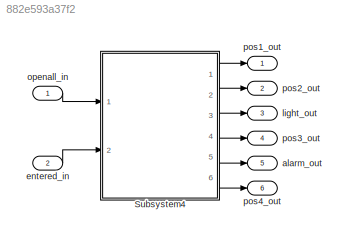
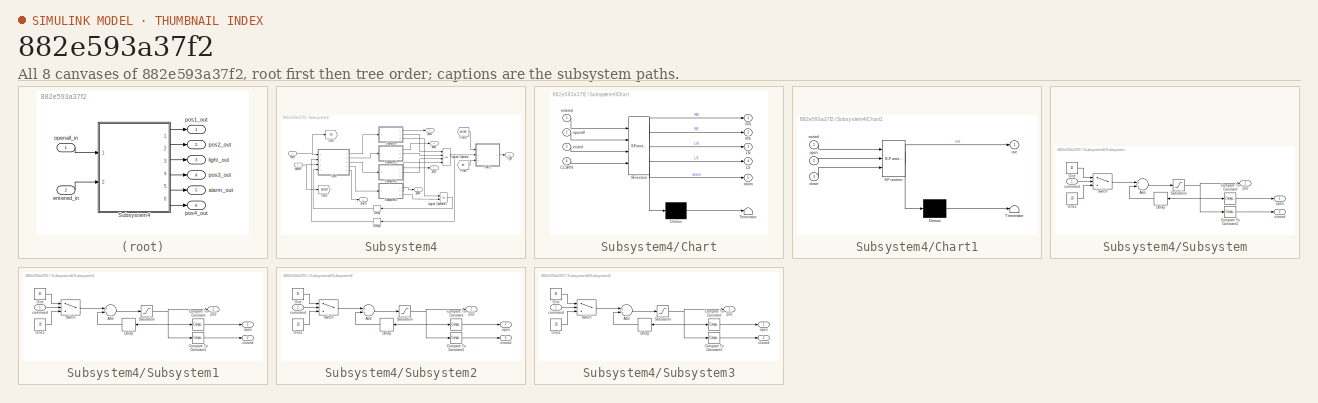
[diagram: thumbnail index - all 8 canvases of the model, root first then tree order]
MODEL slx_882e593a37f2
KIND model
CONFIG AbsTol = auto
CONFIG EnableMultiTasking = off
CONFIG FixedStep = 1
CONFIG MaxStep = 1
CONFIG MinStep = auto
CONFIG RelTol = 1e-3
CONFIG SampleTimeConstraint = Unconstrained
CONFIG Solver = FixedStepDiscrete
CONFIG SolverName = FixedStepDiscrete
CONFIG StartTime = 0.0
CONFIG StopTime = 10.0
WORKSPACE source: MAT-file member
WORKSPACE MCOS: class17 (value not decoded)
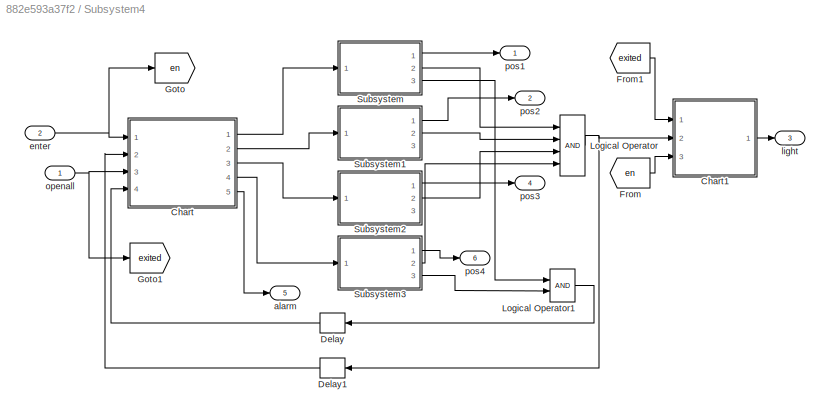
BLOCK [SubSystem] Subsystem4
  Ports = [2, 6]
  RequestExecContextInheritance = off
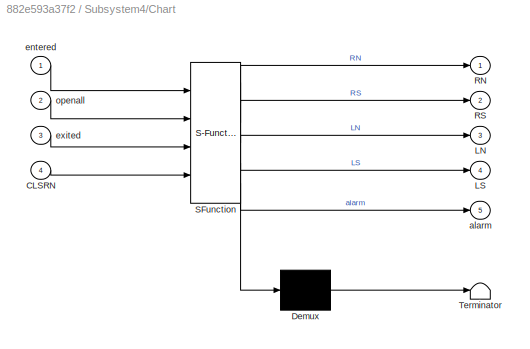
BLOCK [SubSystem] Subsystem4/Chart
  BlockKeywords = __PRM__SERIALIZED__DATA__:Stateflow Chart,Stateflow Diagram
  ErrorFcn = Stateflow.Translate.translate
  PermitHierarchicalResolution = ExplicitOnly
  Ports = [4, 5]
  RequestExecContextInheritance = off
  SFBlockType = Chart
  TreatAsAtomicUnit = on
BLOCK [Demux] Subsystem4/Chart/ Demux 
  Outputs = 1
  Ports = [1, 1]
BLOCK [S-Function] Subsystem4/Chart/ SFunction 
  EnableBusSupport = on
  FunctionName = sf_sfun
  PortCounts = [4 6]
  Ports = [4, 6]
  SFcnIsStateOwnerBlock = off
  SFunctionDeploymentMode = off
  Tag = Stateflow S-Function train_model 3
BLOCK [Terminator] Subsystem4/Chart/ Terminator 
BLOCK [Inport] Subsystem4/Chart/CLSRN
  IconDisplay = Port number
  Port = 4
BLOCK [Outport] Subsystem4/Chart/LN
  IconDisplay = Port number
  Port = 3
BLOCK [Outport] Subsystem4/Chart/LS
  IconDisplay = Port number
  Port = 4
BLOCK [Outport] Subsystem4/Chart/RN
  IconDisplay = Port number
BLOCK [Outport] Subsystem4/Chart/RS
  IconDisplay = Port number
  Port = 2
BLOCK [Outport] Subsystem4/Chart/alarm
  IconDisplay = Port number
  Port = 5
BLOCK [Inport] Subsystem4/Chart/entered
  IconDisplay = Port number
BLOCK [Inport] Subsystem4/Chart/exited
  IconDisplay = Port number
  Port = 3
BLOCK [Inport] Subsystem4/Chart/openall
  IconDisplay = Port number
  Port = 2
BLOCK [SubSystem] Subsystem4/Chart1
  BlockKeywords = __PRM__SERIALIZED__DATA__:Stateflow Chart,Stateflow Diagram
  ErrorFcn = Stateflow.Translate.translate
  PermitHierarchicalResolution = ExplicitOnly
  Ports = [3, 1]
  RequestExecContextInheritance = off
  SFBlockType = Chart
  TreatAsAtomicUnit = on
BLOCK [Demux] Subsystem4/Chart1/ Demux 
  Outputs = 1
  Ports = [1, 1]
BLOCK [S-Function] Subsystem4/Chart1/ SFunction 
  EnableBusSupport = on
  FunctionName = sf_sfun
  PortCounts = [3 2]
  Ports = [3, 2]
  SFcnIsStateOwnerBlock = off
  SFunctionDeploymentMode = off
  Tag = Stateflow S-Function train_model 1
BLOCK [Terminator] Subsystem4/Chart1/ Terminator 
BLOCK [Inport] Subsystem4/Chart1/close
  IconDisplay = Port number
  Port = 3
BLOCK [Inport] Subsystem4/Chart1/exited
  IconDisplay = Port number
BLOCK [Inport] Subsystem4/Chart1/open
  IconDisplay = Port number
  Port = 2
BLOCK [Outport] Subsystem4/Chart1/out
  IconDisplay = Port number
BLOCK [Delay] Subsystem4/Delay
  DelayLength = 1
  InitialCondition = 0
  InputPortMap = u0
  Ports = [1, 1]
  UseCircularBuffer = on
  UserDataPersistent = on
BLOCK [Delay] Subsystem4/Delay1
  DelayLength = 1
  InitialCondition = 0
  InputPortMap = u0
  Ports = [1, 1]
  UseCircularBuffer = on
  UserDataPersistent = on
BLOCK [From] Subsystem4/From
  GotoTag = en
BLOCK [From] Subsystem4/From1
  GotoTag = exited
BLOCK [Goto] Subsystem4/Goto
  GotoTag = en
BLOCK [Goto] Subsystem4/Goto1
  GotoTag = exited
BLOCK [Logic] Subsystem4/Logical Operator
  AllPortsSameDT = off
  Inputs = 4
  OutDataTypeStr = boolean
  Ports = [4, 1]
BLOCK [Logic] Subsystem4/Logical Operator1
  AllPortsSameDT = off
  OutDataTypeStr = boolean
  Ports = [2, 1]
BLOCK [SubSystem] Subsystem4/Subsystem
  Ports = [1, 3]
  RequestExecContextInheritance = off
BLOCK [Sum] Subsystem4/Subsystem/Add
  InputSameDT = off
  OutDataTypeStr = Inherit: Inherit via internal rule
  Ports = [2, 1]
  SaturateOnIntegerOverflow = off
BLOCK [Reference] Subsystem4/Subsystem/Compare To Constant  REF=simulink/Logic and Bit
Operations/Compare
To Constant
  Ports = [1, 1]
  SourceBlock = simulink/Logic and Bit\nOperations/Compare\nTo Constant
  SourceProductBaseCode = SL
  SourceProductName = Simulink
  SourceType = Compare To Constant
BLOCK [Reference] Subsystem4/Subsystem/Compare To Constant1  REF=simulink/Logic and Bit
Operations/Compare
To Constant
  Ports = [1, 1]
  SourceBlock = simulink/Logic and Bit\nOperations/Compare\nTo Constant
  SourceProductBaseCode = SL
  SourceProductName = Simulink
  SourceType = Compare To Constant
BLOCK [Delay] Subsystem4/Subsystem/Delay
  DelayLength = 1
  InitialCondition = 0
  InputPortMap = u0
  Ports = [1, 1]
BLOCK [Constant] Subsystem4/Subsystem/One
  OutDataTypeStr = Inherit: Inherit via back propagation
  Value = 10
BLOCK [Constant] Subsystem4/Subsystem/One1
  OutDataTypeStr = Inherit: Inherit via back propagation
  Value = -10
BLOCK [Saturate] Subsystem4/Subsystem/Saturation
  InputPortMap = u0
  LowerLimit = 0
  Ports = [1, 1]
  UpperLimit = 90
BLOCK [Switch] Subsystem4/Subsystem/Switch
  Criteria = u2 > Threshold
  InputSameDT = off
  SaturateOnIntegerOverflow = off
BLOCK [Outport] Subsystem4/Subsystem/closed
  IconDisplay = Port number
  Port = 3
BLOCK [Inport] Subsystem4/Subsystem/command
  IconDisplay = Port number
  OutDataTypeStr = boolean
BLOCK [Outport] Subsystem4/Subsystem/open
  IconDisplay = Port number
  Port = 2
BLOCK [Outport] Subsystem4/Subsystem/pos 
  IconDisplay = Port number
BLOCK [SubSystem] Subsystem4/Subsystem1
  Ports = [1, 3]
  RequestExecContextInheritance = off
BLOCK [Sum] Subsystem4/Subsystem1/Add
  InputSameDT = off
  OutDataTypeStr = Inherit: Inherit via internal rule
  Ports = [2, 1]
  SaturateOnIntegerOverflow = off
BLOCK [Reference] Subsystem4/Subsystem1/Compare To Constant  REF=simulink/Logic and Bit
Operations/Compare
To Constant
  Ports = [1, 1]
  SourceBlock = simulink/Logic and Bit\nOperations/Compare\nTo Constant
  SourceProductBaseCode = SL
  SourceProductName = Simulink
  SourceType = Compare To Constant
BLOCK [Reference] Subsystem4/Subsystem1/Compare To Constant1  REF=simulink/Logic and Bit
Operations/Compare
To Constant
  Ports = [1, 1]
  SourceBlock = simulink/Logic and Bit\nOperations/Compare\nTo Constant
  SourceProductBaseCode = SL
  SourceProductName = Simulink
  SourceType = Compare To Constant
BLOCK [Delay] Subsystem4/Subsystem1/Delay
  DelayLength = 1
  InitialCondition = 0
  InputPortMap = u0
  Ports = [1, 1]
BLOCK [Constant] Subsystem4/Subsystem1/One
  OutDataTypeStr = Inherit: Inherit via back propagation
  Value = 10
BLOCK [Constant] Subsystem4/Subsystem1/One1
  OutDataTypeStr = Inherit: Inherit via back propagation
  Value = -10
BLOCK [Saturate] Subsystem4/Subsystem1/Saturation
  InputPortMap = u0
  LowerLimit = 0
  Ports = [1, 1]
  UpperLimit = 90
BLOCK [Switch] Subsystem4/Subsystem1/Switch
  Criteria = u2 > Threshold
  InputSameDT = off
  SaturateOnIntegerOverflow = off
BLOCK [Outport] Subsystem4/Subsystem1/closed
  IconDisplay = Port number
  Port = 3
BLOCK [Inport] Subsystem4/Subsystem1/command
  IconDisplay = Port number
BLOCK [Outport] Subsystem4/Subsystem1/open
  IconDisplay = Port number
  Port = 2
BLOCK [Outport] Subsystem4/Subsystem1/pos 
  IconDisplay = Port number
BLOCK [SubSystem] Subsystem4/Subsystem2
  Ports = [1, 3]
  RequestExecContextInheritance = off
BLOCK [Sum] Subsystem4/Subsystem2/Add
  InputSameDT = off
  OutDataTypeStr = Inherit: Inherit via internal rule
  Ports = [2, 1]
  SaturateOnIntegerOverflow = off
BLOCK [Reference] Subsystem4/Subsystem2/Compare To Constant  REF=simulink/Logic and Bit
Operations/Compare
To Constant
  Ports = [1, 1]
  SourceBlock = simulink/Logic and Bit\nOperations/Compare\nTo Constant
  SourceProductBaseCode = SL
  SourceProductName = Simulink
  SourceType = Compare To Constant
BLOCK [Reference] Subsystem4/Subsystem2/Compare To Constant1  REF=simulink/Logic and Bit
Operations/Compare
To Constant
  Ports = [1, 1]
  SourceBlock = simulink/Logic and Bit\nOperations/Compare\nTo Constant
  SourceProductBaseCode = SL
  SourceProductName = Simulink
  SourceType = Compare To Constant
BLOCK [Delay] Subsystem4/Subsystem2/Delay
  DelayLength = 1
  InitialCondition = 0
  InputPortMap = u0
  Ports = [1, 1]
BLOCK [Constant] Subsystem4/Subsystem2/One
  OutDataTypeStr = Inherit: Inherit via back propagation
  Value = 10
BLOCK [Constant] Subsystem4/Subsystem2/One1
  OutDataTypeStr = Inherit: Inherit via back propagation
  Value = -10
BLOCK [Saturate] Subsystem4/Subsystem2/Saturation
  InputPortMap = u0
  LowerLimit = 0
  Ports = [1, 1]
  UpperLimit = 90
BLOCK [Switch] Subsystem4/Subsystem2/Switch
  Criteria = u2 ~= 0
  InputSameDT = off
  SaturateOnIntegerOverflow = off
BLOCK [Outport] Subsystem4/Subsystem2/closed
  IconDisplay = Port number
  Port = 3
BLOCK [Inport] Subsystem4/Subsystem2/command
  IconDisplay = Port number
BLOCK [Outport] Subsystem4/Subsystem2/open
  IconDisplay = Port number
  Port = 2
BLOCK [Outport] Subsystem4/Subsystem2/pos 
  IconDisplay = Port number
BLOCK [SubSystem] Subsystem4/Subsystem3
  Ports = [1, 3]
  RequestExecContextInheritance = off
BLOCK [Sum] Subsystem4/Subsystem3/Add
  InputSameDT = off
  OutDataTypeStr = Inherit: Inherit via internal rule
  Ports = [2, 1]
  SaturateOnIntegerOverflow = off
BLOCK [Reference] Subsystem4/Subsystem3/Compare To Constant  REF=simulink/Logic and Bit
Operations/Compare
To Constant
  Ports = [1, 1]
  SourceBlock = simulink/Logic and Bit\nOperations/Compare\nTo Constant
  SourceProductBaseCode = SL
  SourceProductName = Simulink
  SourceType = Compare To Constant
BLOCK [Reference] Subsystem4/Subsystem3/Compare To Constant1  REF=simulink/Logic and Bit
Operations/Compare
To Constant
  Ports = [1, 1]
  SourceBlock = simulink/Logic and Bit\nOperations/Compare\nTo Constant
  SourceProductBaseCode = SL
  SourceProductName = Simulink
  SourceType = Compare To Constant
BLOCK [Delay] Subsystem4/Subsystem3/Delay
  DelayLength = 1
  InitialCondition = 0
  InputPortMap = u0
  Ports = [1, 1]
BLOCK [Constant] Subsystem4/Subsystem3/One
  OutDataTypeStr = Inherit: Inherit via back propagation
  Value = 10
BLOCK [Constant] Subsystem4/Subsystem3/One1
  OutDataTypeStr = Inherit: Inherit via back propagation
  Value = -10
BLOCK [Saturate] Subsystem4/Subsystem3/Saturation
  InputPortMap = u0
  LowerLimit = 0
  Ports = [1, 1]
  UpperLimit = 90
BLOCK [Switch] Subsystem4/Subsystem3/Switch
  Criteria = u2 > Threshold
  InputSameDT = off
  SaturateOnIntegerOverflow = off
BLOCK [Outport] Subsystem4/Subsystem3/closed
  IconDisplay = Port number
  Port = 3
BLOCK [Inport] Subsystem4/Subsystem3/command
  IconDisplay = Port number
BLOCK [Outport] Subsystem4/Subsystem3/open
  IconDisplay = Port number
  Port = 2
BLOCK [Outport] Subsystem4/Subsystem3/pos 
  IconDisplay = Port number
BLOCK [Outport] Subsystem4/alarm
  IconDisplay = Port number
  Port = 5
BLOCK [Inport] Subsystem4/enter 
  IconDisplay = Port number
  Port = 2
BLOCK [Outport] Subsystem4/light
  IconDisplay = Port number
  Port = 3
BLOCK [Inport] Subsystem4/openall 
  IconDisplay = Port number
BLOCK [Outport] Subsystem4/pos1
  IconDisplay = Port number
BLOCK [Outport] Subsystem4/pos2 
  IconDisplay = Port number
  Port = 2
BLOCK [Outport] Subsystem4/pos3 
  IconDisplay = Port number
  Port = 4
BLOCK [Outport] Subsystem4/pos4 
  IconDisplay = Port number
  Port = 6
BLOCK [Outport] alarm_out 
  IconDisplay = Port number
  Port = 5
BLOCK [Inport] entered_in 
  IconDisplay = Port number
  Port = 2
BLOCK [Outport] light_out 
  IconDisplay = Port number
  Port = 3
BLOCK [Inport] openall_in 
  IconDisplay = Port number
BLOCK [Outport] pos1_out 
  IconDisplay = Port number
BLOCK [Outport] pos2_out 
  IconDisplay = Port number
  Port = 2
BLOCK [Outport] pos3_out 
  IconDisplay = Port number
  Port = 4
BLOCK [Outport] pos4_out
  IconDisplay = Port number
  Port = 6
LINE Subsystem4/Chart1:1 -> Subsystem4/light:1
LINE Subsystem4/Chart:1 -> Subsystem4/Subsystem:1
LINE Subsystem4/Chart:2 -> Subsystem4/Subsystem1:1
LINE Subsystem4/Chart:3 -> Subsystem4/Subsystem2:1
LINE Subsystem4/Chart:4 -> Subsystem4/Subsystem3:1
LINE Subsystem4/Chart:5 -> Subsystem4/alarm:1
LINE Subsystem4/Delay1:1 -> Subsystem4/Chart:2
LINE Subsystem4/Delay:1 -> Subsystem4/Chart:4
LINE Subsystem4/From1:1 -> Subsystem4/Chart1:1
LINE Subsystem4/From:1 -> Subsystem4/Chart1:3
LINE Subsystem4/Logical Operator1:1 -> Subsystem4/Delay:1
NET Subsystem4/Logical Operator:1 -> Subsystem4/Chart1:2, Subsystem4/Delay1:1
LINE Subsystem4/Subsystem/Add:1 -> Subsystem4/Subsystem/Saturation:1
LINE Subsystem4/Subsystem/Compare To Constant1:1 -> Subsystem4/Subsystem/closed:1
LINE Subsystem4/Subsystem/Compare To Constant:1 -> Subsystem4/Subsystem/open:1
LINE Subsystem4/Subsystem/Delay:1 -> Subsystem4/Subsystem/Add:2
LINE Subsystem4/Subsystem/One1:1 -> Subsystem4/Subsystem/Switch:3
LINE Subsystem4/Subsystem/One:1 -> Subsystem4/Subsystem/Switch:1
NET Subsystem4/Subsystem/Saturation:1 -> Subsystem4/Subsystem/Compare To Constant1:1, Subsystem4/Subsystem/Compare To Constant:1, Subsystem4/Subsystem/Delay:1, Subsystem4/Subsystem/pos :1
LINE Subsystem4/Subsystem/Switch:1 -> Subsystem4/Subsystem/Add:1
LINE Subsystem4/Subsystem/command:1 -> Subsystem4/Subsystem/Switch:2
LINE Subsystem4/Subsystem1/Add:1 -> Subsystem4/Subsystem1/Saturation:1
LINE Subsystem4/Subsystem1/Compare To Constant1:1 -> Subsystem4/Subsystem1/closed:1
LINE Subsystem4/Subsystem1/Compare To Constant:1 -> Subsystem4/Subsystem1/open:1
LINE Subsystem4/Subsystem1/Delay:1 -> Subsystem4/Subsystem1/Add:2
LINE Subsystem4/Subsystem1/One1:1 -> Subsystem4/Subsystem1/Switch:3
LINE Subsystem4/Subsystem1/One:1 -> Subsystem4/Subsystem1/Switch:1
NET Subsystem4/Subsystem1/Saturation:1 -> Subsystem4/Subsystem1/Compare To Constant1:1, Subsystem4/Subsystem1/Compare To Constant:1, Subsystem4/Subsystem1/Delay:1, Subsystem4/Subsystem1/pos :1
LINE Subsystem4/Subsystem1/Switch:1 -> Subsystem4/Subsystem1/Add:1
LINE Subsystem4/Subsystem1/command:1 -> Subsystem4/Subsystem1/Switch:2
LINE Subsystem4/Subsystem1:1 -> Subsystem4/pos2 :1
LINE Subsystem4/Subsystem1:2 -> Subsystem4/Logical Operator:2
LINE Subsystem4/Subsystem2/Add:1 -> Subsystem4/Subsystem2/Saturation:1
LINE Subsystem4/Subsystem2/Compare To Constant1:1 -> Subsystem4/Subsystem2/closed:1
LINE Subsystem4/Subsystem2/Compare To Constant:1 -> Subsystem4/Subsystem2/open:1
LINE Subsystem4/Subsystem2/Delay:1 -> Subsystem4/Subsystem2/Add:2
LINE Subsystem4/Subsystem2/One1:1 -> Subsystem4/Subsystem2/Switch:3
LINE Subsystem4/Subsystem2/One:1 -> Subsystem4/Subsystem2/Switch:1
NET Subsystem4/Subsystem2/Saturation:1 -> Subsystem4/Subsystem2/Compare To Constant1:1, Subsystem4/Subsystem2/Compare To Constant:1, Subsystem4/Subsystem2/Delay:1, Subsystem4/Subsystem2/pos :1
LINE Subsystem4/Subsystem2/Switch:1 -> Subsystem4/Subsystem2/Add:1
LINE Subsystem4/Subsystem2/command:1 -> Subsystem4/Subsystem2/Switch:2
LINE Subsystem4/Subsystem2:1 -> Subsystem4/pos3 :1
LINE Subsystem4/Subsystem2:2 -> Subsystem4/Logical Operator:3
LINE Subsystem4/Subsystem3/Add:1 -> Subsystem4/Subsystem3/Saturation:1
LINE Subsystem4/Subsystem3/Compare To Constant1:1 -> Subsystem4/Subsystem3/closed:1
LINE Subsystem4/Subsystem3/Compare To Constant:1 -> Subsystem4/Subsystem3/open:1
LINE Subsystem4/Subsystem3/Delay:1 -> Subsystem4/Subsystem3/Add:2
LINE Subsystem4/Subsystem3/One1:1 -> Subsystem4/Subsystem3/Switch:3
LINE Subsystem4/Subsystem3/One:1 -> Subsystem4/Subsystem3/Switch:1
NET Subsystem4/Subsystem3/Saturation:1 -> Subsystem4/Subsystem3/Compare To Constant1:1, Subsystem4/Subsystem3/Compare To Constant:1, Subsystem4/Subsystem3/Delay:1, Subsystem4/Subsystem3/pos :1
LINE Subsystem4/Subsystem3/Switch:1 -> Subsystem4/Subsystem3/Add:1
LINE Subsystem4/Subsystem3/command:1 -> Subsystem4/Subsystem3/Switch:2
LINE Subsystem4/Subsystem3:1 -> Subsystem4/pos4 :1
LINE Subsystem4/Subsystem3:2 -> Subsystem4/Logical Operator:4
LINE Subsystem4/Subsystem3:3 -> Subsystem4/Logical Operator1:2
LINE Subsystem4/Subsystem:1 -> Subsystem4/pos1:1
LINE Subsystem4/Subsystem:2 -> Subsystem4/Logical Operator:1
LINE Subsystem4/Subsystem:3 -> Subsystem4/Logical Operator1:1
NET Subsystem4/enter :1 -> Subsystem4/Chart:1, Subsystem4/Goto:1
NET Subsystem4/openall :1 -> Subsystem4/Chart:3, Subsystem4/Goto1:1
LINE Subsystem4:1 -> pos1_out :1
LINE Subsystem4:2 -> pos2_out :1
LINE Subsystem4:3 -> light_out :1
LINE Subsystem4:4 -> pos3_out :1
LINE Subsystem4:5 -> alarm_out :1
LINE Subsystem4:6 -> pos4_out:1
LINE entered_in :1 -> Subsystem4:2
LINE openall_in :1 -> Subsystem4:1
note: NET lines group one-source signal fan-out (src -> all destinations, sorted); 1:1 wires keep LINE
CHART Subsystem4/Chart1 states=4 transitions=5
  STATE_LABEL 'orange_open\nen:\nout = 2;'
  STATE_LABEL 'Green\nen:\nout = 1;\n'
  STATE_LABEL 'orange_close\nen:\nout = 2;\ncount = 0;\ndu:\ncount = count + 1;'
  STATE_LABEL 'Red\nen:\nout = 3;'
CHART Subsystem4/Chart states=6 transitions=10
  STATE_LABEL 'Openall\nen:\nLN = false;\nLS = false;\nRN = false;\nRS = false;\nSTATEPOS = 5;\ncount = 0;\ndu:\ncount = count + 1'
  STATE_LABEL 'Opened\nen:\nLN = true;\nLS = true;\nRN = true;\nRS = true;\nSTATEPOS = 1;\nalarm = false;'
  STATE_LABEL 'alert\nalarm = true;'
  STATE_LABEL 'LNRS\nen:\nLN = false;\nRS = false;\ncount = 0;\nSTATEPOS = 4;\ndu:\ncount = count+1'
  STATE_LABEL 'entered\nen:\nLS = false;\nRN = false;\nSTATEPOS = 2;\ncount = 0;\ndu:\ncount = count + 1;\n'
  STATE_LABEL 'closedLSRN\nen:\ncount = 0;\nSTATEPOS = 3;\ndu:\ncount = count +1\n'
